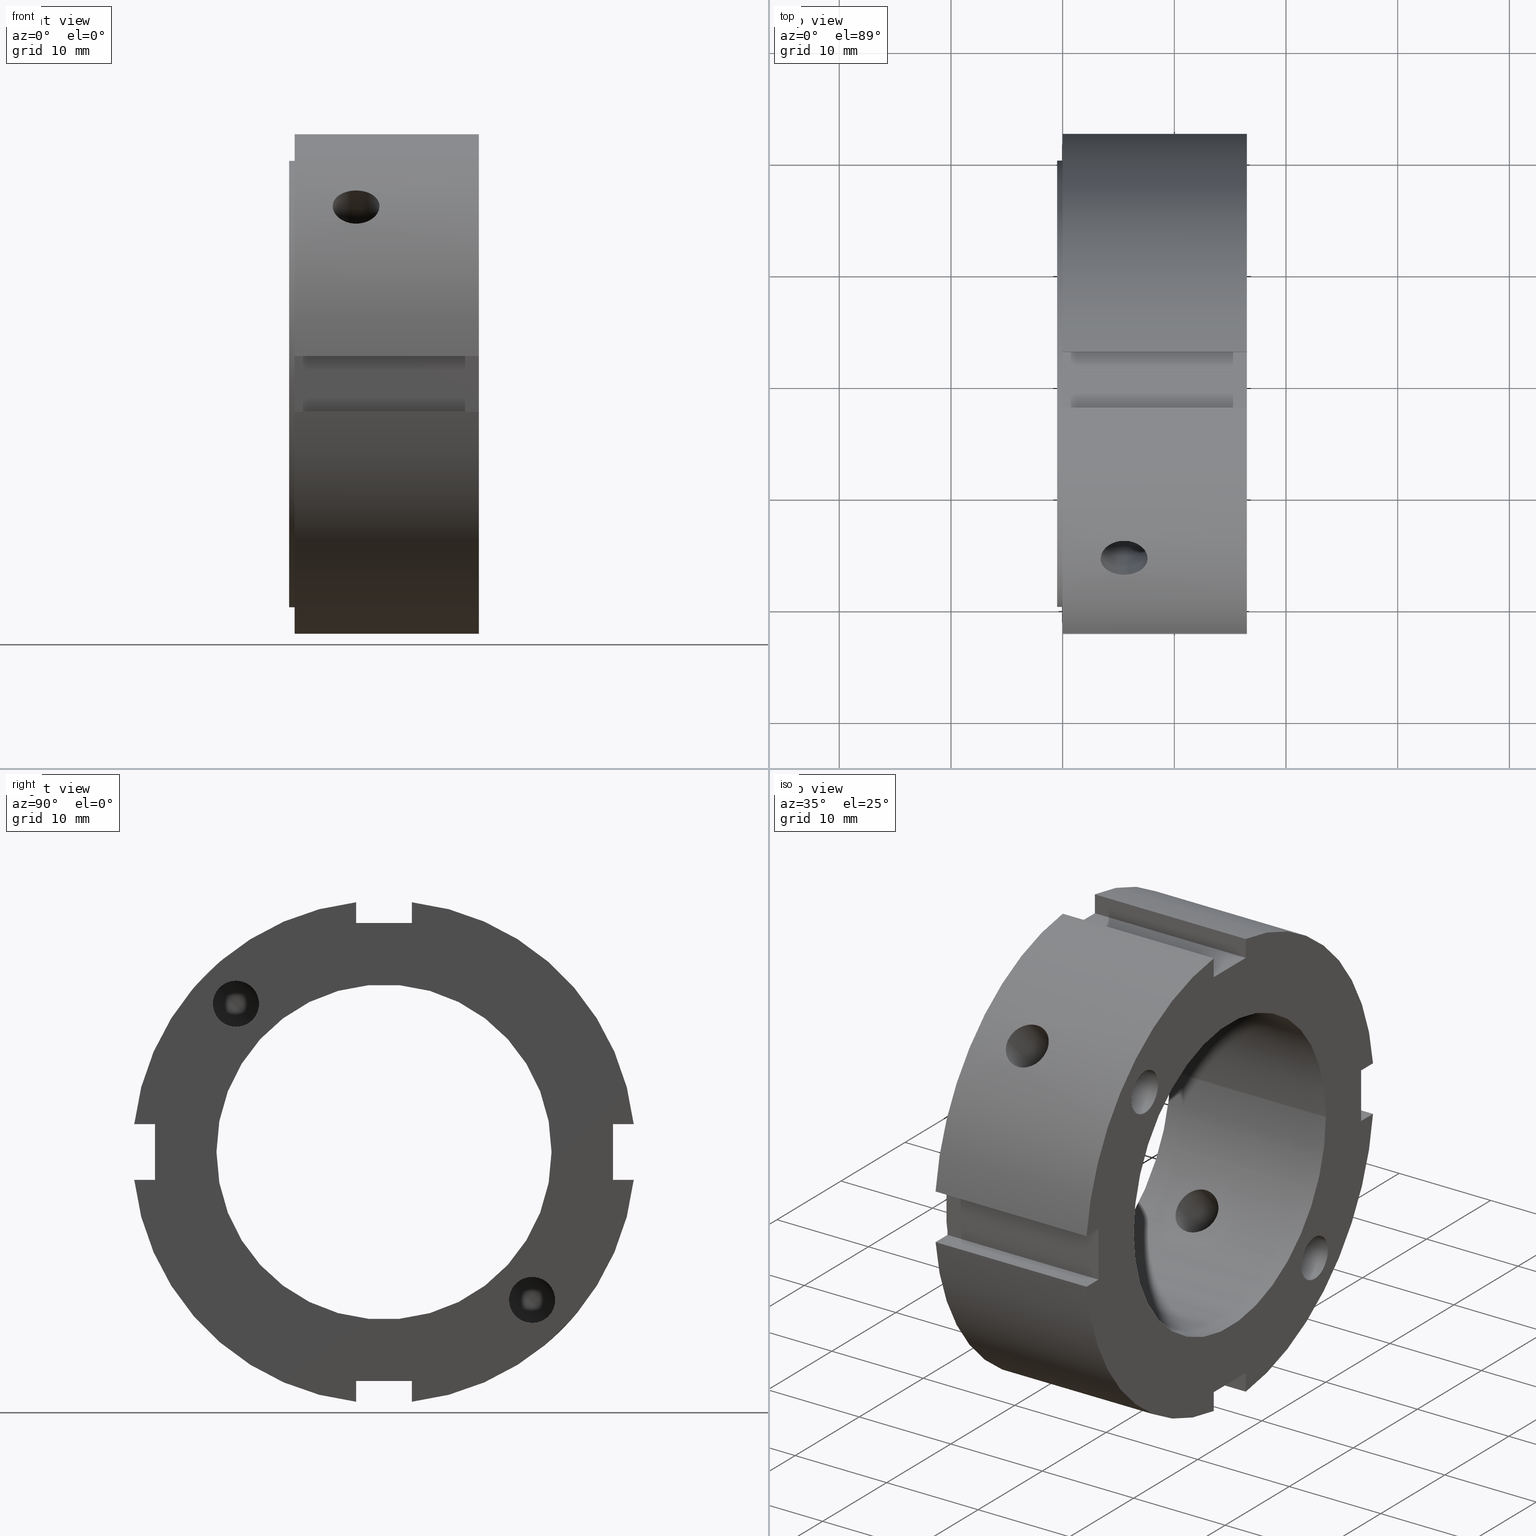
[diagram: canonical four-view strip — front | top / right | iso, engineering-drawing reading convention]
A machine part, canonical four-view strip (front | top / right | iso — engineering-drawing reading convention). The complete STEP part file that produces these views, byte-faithful:
ISO-10303-21;
HEADER;
/****************************************************************
 * Generated by software with PDE/Lib inside                    *
 * PDElib Version v51a, created Thu 01/14/2010                  *
 * ITI Transcendata (http://www.transcendata.com/)              *
 ****************************************************************/
FILE_DESCRIPTION((''),'2;1');
FILE_NAME('C:\\Users\\fkd-ct1n\\Desktop\\FKD ZMV 30.stp','2014-08-08T16:49:33',('fkd-ct1n'),(''),'Autodesk Inventor 2011','Autodesk Inventor 2011','');
FILE_SCHEMA(('AUTOMOTIVE_DESIGN { 1 0 10303 214 1 1 1 1 }'));
ENDSEC;
DATA;
#5=APPLICATION_CONTEXT('automotive design');
#6=APPLICATION_PROTOCOL_DEFINITION('International Standard','automotive_design',2001,#5);
#7=PRODUCT_CONTEXT('',#5,'mechanical');
#8=PRODUCT('FKD ZMV 30','FKD ZMV 30',$,(#7));
#9=PRODUCT_RELATED_PRODUCT_CATEGORY('part',$,(#8));
#10=PRODUCT_DEFINITION_FORMATION('',$,#8);
#11=PRODUCT_DEFINITION_CONTEXT('part definition',#5,'design');
#12=PRODUCT_DEFINITION('',$,#10,#11);
#18=(NAMED_UNIT(*)PLANE_ANGLE_UNIT()SI_UNIT($,.RADIAN.));
#19=DIMENSIONAL_EXPONENTS(0.0,0.0,0.0,0.0,0.0,0.0,0.0);
#20=PLANE_ANGLE_MEASURE_WITH_UNIT(PLANE_ANGLE_MEASURE(0.017453292500000),#18);
#24=(CONVERSION_BASED_UNIT('DEGREE',#20)NAMED_UNIT(#19)PLANE_ANGLE_UNIT());
#28=(NAMED_UNIT(*)SI_UNIT($,.STERADIAN.)SOLID_ANGLE_UNIT());
#32=(LENGTH_UNIT()NAMED_UNIT(*)SI_UNIT(.MILLI.,.METRE.));
#34=UNCERTAINTY_MEASURE_WITH_UNIT(LENGTH_MEASURE(0.010000000000000),#32,'DISTANCE_ACCURACY_VALUE','');
#36=(GEOMETRIC_REPRESENTATION_CONTEXT(3)GLOBAL_UNCERTAINTY_ASSIGNED_CONTEXT((#34))GLOBAL_UNIT_ASSIGNED_CONTEXT((#24,#28,#32))REPRESENTATION_CONTEXT('None','None'));
#37=AXIS2_PLACEMENT_3D('',#38,#39,#40);
#38=CARTESIAN_POINT('',(0.0,0.0,0.0));
#39=DIRECTION('',(0.0,0.0,1.0));
#40=DIRECTION('',(1.0,0.0,0.0));
#41=SHAPE_REPRESENTATION('',(#37),#36);
#42=PRODUCT_DEFINITION_SHAPE('','',#12);
#43=SHAPE_DEFINITION_REPRESENTATION(#42,#41);
#49=(NAMED_UNIT(*)PLANE_ANGLE_UNIT()SI_UNIT($,.RADIAN.));
#50=DIMENSIONAL_EXPONENTS(0.0,0.0,0.0,0.0,0.0,0.0,0.0);
#51=PLANE_ANGLE_MEASURE_WITH_UNIT(PLANE_ANGLE_MEASURE(0.017453292500000),#49);
#55=(CONVERSION_BASED_UNIT('DEGREE',#51)NAMED_UNIT(#50)PLANE_ANGLE_UNIT());
#59=(NAMED_UNIT(*)SI_UNIT($,.STERADIAN.)SOLID_ANGLE_UNIT());
#63=(LENGTH_UNIT()NAMED_UNIT(*)SI_UNIT(.MILLI.,.METRE.));
#65=UNCERTAINTY_MEASURE_WITH_UNIT(LENGTH_MEASURE(0.000001000000000),#63,'DISTANCE_ACCURACY_VALUE','');
#67=(GEOMETRIC_REPRESENTATION_CONTEXT(3)GLOBAL_UNCERTAINTY_ASSIGNED_CONTEXT((#65))GLOBAL_UNIT_ASSIGNED_CONTEXT((#55,#59,#63))REPRESENTATION_CONTEXT('','3D'));
#68=CARTESIAN_POINT('',(16.500000000000007,2.499999999999995,-29.999999999999996));
#69=DIRECTION('',(0.0,1.0,0.0));
#70=DIRECTION('',(1.0,0.0,0.0));
#71=AXIS2_PLACEMENT_3D('',#68,#69,#70);
#72=PLANE('',#71);
#73=CARTESIAN_POINT('',(16.500000000000007,2.499999999999996,-22.360679774997898));
#74=VERTEX_POINT('',#73);
#75=CARTESIAN_POINT('',(0.0,2.499999999999996,-22.360679774997898));
#76=VERTEX_POINT('',#75);
#77=CARTESIAN_POINT('',(16.500000000000007,2.499999999999996,-22.360679774997898));
#78=DIRECTION('',(-1.0,0.0,0.0));
#79=VECTOR('',#78,16.500000000000007);
#80=LINE('',#77,#79);
#81=EDGE_CURVE('',#74,#76,#80,.T.);
#82=ORIENTED_EDGE('',*,*,#81,.F.);
#83=CARTESIAN_POINT('',(16.500000000000007,2.499999999999996,-20.500000000000000));
#84=VERTEX_POINT('',#83);
#85=CARTESIAN_POINT('',(16.500000000000007,2.499999999999997,-20.500000000000000));
#86=DIRECTION('',(0.0,0.0,-1.0));
#87=VECTOR('',#86,1.860679774997898);
#88=LINE('',#85,#87);
#89=EDGE_CURVE('',#84,#74,#88,.T.);
#90=ORIENTED_EDGE('',*,*,#89,.F.);
#91=CARTESIAN_POINT('',(0.0,2.499999999999996,-20.500000000000000));
#92=VERTEX_POINT('',#91);
#93=CARTESIAN_POINT('',(16.500000000000007,2.499999999999996,-20.500000000000000));
#94=DIRECTION('',(-1.0,0.0,0.0));
#95=VECTOR('',#94,16.500000000000007);
#96=LINE('',#93,#95);
#97=EDGE_CURVE('',#84,#92,#96,.T.);
#98=ORIENTED_EDGE('',*,*,#97,.T.);
#99=CARTESIAN_POINT('',(0.0,2.499999999999996,-22.360679774997898));
#100=DIRECTION('',(0.0,0.0,1.0));
#101=VECTOR('',#100,1.860679774997898);
#102=LINE('',#99,#101);
#103=EDGE_CURVE('',#76,#92,#102,.T.);
#104=ORIENTED_EDGE('',*,*,#103,.F.);
#105=EDGE_LOOP('',(#82,#90,#98,#104));
#106=FACE_OUTER_BOUND('',#105,.T.);
#107=ADVANCED_FACE('',(#106),#72,.F.);
#108=CARTESIAN_POINT('',(16.500000000000007,-2.500000000000004,-20.500000000000000));
#109=DIRECTION('',(0.0,-1.0,0.0));
#110=DIRECTION('',(-1.0,0.0,0.0));
#111=AXIS2_PLACEMENT_3D('',#108,#109,#110);
#112=PLANE('',#111);
#113=CARTESIAN_POINT('',(0.0,-2.500000000000004,-22.360679774997898));
#114=VERTEX_POINT('',#113);
#115=CARTESIAN_POINT('',(16.500000000000007,-2.500000000000005,-22.360679774997898));
#116=VERTEX_POINT('',#115);
#117=CARTESIAN_POINT('',(0.0,-2.500000000000005,-22.360679774997898));
#118=DIRECTION('',(1.0,0.0,0.0));
#119=VECTOR('',#118,16.500000000000007);
#120=LINE('',#117,#119);
#121=EDGE_CURVE('',#114,#116,#120,.T.);
#122=ORIENTED_EDGE('',*,*,#121,.F.);
#123=CARTESIAN_POINT('',(0.0,-2.500000000000004,-20.500000000000000));
#124=VERTEX_POINT('',#123);
#125=CARTESIAN_POINT('',(0.0,-2.500000000000004,-20.500000000000000));
#126=DIRECTION('',(0.0,0.0,-1.0));
#127=VECTOR('',#126,1.860679774997898);
#128=LINE('',#125,#127);
#129=EDGE_CURVE('',#124,#114,#128,.T.);
#130=ORIENTED_EDGE('',*,*,#129,.F.);
#131=CARTESIAN_POINT('',(16.500000000000007,-2.500000000000004,-20.500000000000000));
#132=VERTEX_POINT('',#131);
#133=CARTESIAN_POINT('',(16.500000000000007,-2.500000000000004,-20.500000000000000));
#134=DIRECTION('',(-1.0,0.0,0.0));
#135=VECTOR('',#134,16.500000000000007);
#136=LINE('',#133,#135);
#137=EDGE_CURVE('',#132,#124,#136,.T.);
#138=ORIENTED_EDGE('',*,*,#137,.F.);
#139=CARTESIAN_POINT('',(16.500000000000007,-2.500000000000004,-22.360679774997898));
#140=DIRECTION('',(0.0,0.0,1.0));
#141=VECTOR('',#140,1.860679774997898);
#142=LINE('',#139,#141);
#143=EDGE_CURVE('',#116,#132,#142,.T.);
#144=ORIENTED_EDGE('',*,*,#143,.F.);
#145=EDGE_LOOP('',(#122,#130,#138,#144));
#146=FACE_OUTER_BOUND('',#145,.T.);
#147=ADVANCED_FACE('',(#146),#112,.F.);
#148=CARTESIAN_POINT('',(16.500000000000007,2.499999999999996,-20.500000000000000));
#149=DIRECTION('',(0.0,0.0,1.0));
#150=DIRECTION('',(0.0,-1.0,0.0));
#151=AXIS2_PLACEMENT_3D('',#148,#149,#150);
#152=PLANE('',#151);
#153=CARTESIAN_POINT('',(0.0,2.499999999999996,-20.500000000000000));
#154=DIRECTION('',(0.0,-1.0,0.0));
#155=VECTOR('',#154,5.0);
#156=LINE('',#153,#155);
#157=EDGE_CURVE('',#92,#124,#156,.T.);
#158=ORIENTED_EDGE('',*,*,#157,.F.);
#159=ORIENTED_EDGE('',*,*,#97,.F.);
#160=CARTESIAN_POINT('',(16.500000000000007,-2.500000000000004,-20.499999999999996));
#161=DIRECTION('',(0.0,1.0,0.0));
#162=VECTOR('',#161,5.0);
#163=LINE('',#160,#162);
#164=EDGE_CURVE('',#132,#84,#163,.T.);
#165=ORIENTED_EDGE('',*,*,#164,.F.);
#166=ORIENTED_EDGE('',*,*,#137,.T.);
#167=EDGE_LOOP('',(#158,#159,#165,#166));
#168=FACE_OUTER_BOUND('',#167,.T.);
#169=ADVANCED_FACE('',(#168),#152,.F.);
#170=CARTESIAN_POINT('',(16.500000000000007,-29.999999999999996,-2.499999999999996));
#171=DIRECTION('',(0.0,0.0,-1.0));
#172=DIRECTION('',(1.0,0.0,0.0));
#173=AXIS2_PLACEMENT_3D('',#170,#171,#172);
#174=PLANE('',#173);
#175=CARTESIAN_POINT('',(16.500000000000007,-22.360679774997898,-2.499999999999997));
#176=VERTEX_POINT('',#175);
#177=CARTESIAN_POINT('',(0.0,-22.360679774997898,-2.499999999999997));
#178=VERTEX_POINT('',#177);
#179=CARTESIAN_POINT('',(16.500000000000007,-22.360679774997898,-2.499999999999997));
#180=DIRECTION('',(-1.0,0.0,0.0));
#181=VECTOR('',#180,16.500000000000007);
#182=LINE('',#179,#181);
#183=EDGE_CURVE('',#176,#178,#182,.T.);
#184=ORIENTED_EDGE('',*,*,#183,.F.);
#185=CARTESIAN_POINT('',(16.500000000000007,-20.500000000000000,-2.499999999999997));
#186=VERTEX_POINT('',#185);
#187=CARTESIAN_POINT('',(16.500000000000007,-20.500000000000000,-2.499999999999997));
#188=DIRECTION('',(0.0,-1.0,0.0));
#189=VECTOR('',#188,1.860679774997898);
#190=LINE('',#187,#189);
#191=EDGE_CURVE('',#186,#176,#190,.T.);
#192=ORIENTED_EDGE('',*,*,#191,.F.);
#193=CARTESIAN_POINT('',(0.0,-20.500000000000000,-2.499999999999997));
#194=VERTEX_POINT('',#193);
#195=CARTESIAN_POINT('',(16.500000000000007,-20.500000000000000,-2.499999999999997));
#196=DIRECTION('',(-1.0,0.0,0.0));
#197=VECTOR('',#196,16.500000000000007);
#198=LINE('',#195,#197);
#199=EDGE_CURVE('',#186,#194,#198,.T.);
#200=ORIENTED_EDGE('',*,*,#199,.T.);
#201=CARTESIAN_POINT('',(0.0,-22.360679774997898,-2.499999999999997));
#202=DIRECTION('',(0.0,1.0,0.0));
#203=VECTOR('',#202,1.860679774997898);
#204=LINE('',#201,#203);
#205=EDGE_CURVE('',#178,#194,#204,.T.);
#206=ORIENTED_EDGE('',*,*,#205,.F.);
#207=EDGE_LOOP('',(#184,#192,#200,#206));
#208=FACE_OUTER_BOUND('',#207,.T.);
#209=ADVANCED_FACE('',(#208),#174,.F.);
#210=CARTESIAN_POINT('',(16.500000000000007,-20.500000000000000,2.500000000000003));
#211=DIRECTION('',(0.0,0.0,1.0));
#212=DIRECTION('',(-1.0,0.0,0.0));
#213=AXIS2_PLACEMENT_3D('',#210,#211,#212);
#214=PLANE('',#213);
#215=CARTESIAN_POINT('',(0.0,-22.360679774997898,2.500000000000003));
#216=VERTEX_POINT('',#215);
#217=CARTESIAN_POINT('',(16.500000000000007,-22.360679774997898,2.500000000000004));
#218=VERTEX_POINT('',#217);
#219=CARTESIAN_POINT('',(0.0,-22.360679774997898,2.500000000000004));
#220=DIRECTION('',(1.0,0.0,0.0));
#221=VECTOR('',#220,16.500000000000007);
#222=LINE('',#219,#221);
#223=EDGE_CURVE('',#216,#218,#222,.T.);
#224=ORIENTED_EDGE('',*,*,#223,.F.);
#225=CARTESIAN_POINT('',(0.0,-20.500000000000000,2.500000000000003));
#226=VERTEX_POINT('',#225);
#227=CARTESIAN_POINT('',(0.0,-20.500000000000000,2.500000000000002));
#228=DIRECTION('',(0.0,-1.0,0.0));
#229=VECTOR('',#228,1.860679774997898);
#230=LINE('',#227,#229);
#231=EDGE_CURVE('',#226,#216,#230,.T.);
#232=ORIENTED_EDGE('',*,*,#231,.F.);
#233=CARTESIAN_POINT('',(16.500000000000007,-20.500000000000000,2.500000000000003));
#234=VERTEX_POINT('',#233);
#235=CARTESIAN_POINT('',(16.500000000000007,-20.500000000000000,2.500000000000003));
#236=DIRECTION('',(-1.0,0.0,0.0));
#237=VECTOR('',#236,16.500000000000007);
#238=LINE('',#235,#237);
#239=EDGE_CURVE('',#234,#226,#238,.T.);
#240=ORIENTED_EDGE('',*,*,#239,.F.);
#241=CARTESIAN_POINT('',(16.500000000000007,-22.360679774997902,2.500000000000002));
#242=DIRECTION('',(0.0,1.0,0.0));
#243=VECTOR('',#242,1.860679774997905);
#244=LINE('',#241,#243);
#245=EDGE_CURVE('',#218,#234,#244,.T.);
#246=ORIENTED_EDGE('',*,*,#245,.F.);
#247=EDGE_LOOP('',(#224,#232,#240,#246));
#248=FACE_OUTER_BOUND('',#247,.T.);
#249=ADVANCED_FACE('',(#248),#214,.F.);
#250=CARTESIAN_POINT('',(16.500000000000007,-20.500000000000000,-2.499999999999997));
#251=DIRECTION('',(0.0,1.0,0.0));
#252=DIRECTION('',(0.0,0.0,1.0));
#253=AXIS2_PLACEMENT_3D('',#250,#251,#252);
#254=PLANE('',#253);
#255=CARTESIAN_POINT('',(0.0,-20.500000000000000,-2.499999999999997));
#256=DIRECTION('',(0.0,0.0,1.0));
#257=VECTOR('',#256,5.0);
#258=LINE('',#255,#257);
#259=EDGE_CURVE('',#194,#226,#258,.T.);
#260=ORIENTED_EDGE('',*,*,#259,.F.);
#261=ORIENTED_EDGE('',*,*,#199,.F.);
#262=CARTESIAN_POINT('',(16.500000000000007,-20.500000000000000,2.500000000000003));
#263=DIRECTION('',(0.0,0.0,-1.0));
#264=VECTOR('',#263,5.0);
#265=LINE('',#262,#264);
#266=EDGE_CURVE('',#234,#186,#265,.T.);
#267=ORIENTED_EDGE('',*,*,#266,.F.);
#268=ORIENTED_EDGE('',*,*,#239,.T.);
#269=EDGE_LOOP('',(#260,#261,#267,#268));
#270=FACE_OUTER_BOUND('',#269,.T.);
#271=ADVANCED_FACE('',(#270),#254,.F.);
#272=CARTESIAN_POINT('',(16.500000000000007,-2.499999999999998,29.999999999999996));
#273=DIRECTION('',(0.0,-1.0,0.0));
#274=DIRECTION('',(1.0,0.0,0.0));
#275=AXIS2_PLACEMENT_3D('',#272,#273,#274);
#276=PLANE('',#275);
#277=CARTESIAN_POINT('',(16.500000000000007,-2.499999999999999,22.360679774997898));
#278=VERTEX_POINT('',#277);
#279=CARTESIAN_POINT('',(0.0,-2.499999999999999,22.360679774997898));
#280=VERTEX_POINT('',#279);
#281=CARTESIAN_POINT('',(16.500000000000007,-2.499999999999998,22.360679774997898));
#282=DIRECTION('',(-1.0,0.0,0.0));
#283=VECTOR('',#282,16.500000000000007);
#284=LINE('',#281,#283);
#285=EDGE_CURVE('',#278,#280,#284,.T.);
#286=ORIENTED_EDGE('',*,*,#285,.F.);
#287=CARTESIAN_POINT('',(16.500000000000007,-2.499999999999999,20.500000000000000));
#288=VERTEX_POINT('',#287);
#289=CARTESIAN_POINT('',(16.500000000000007,-2.499999999999999,20.500000000000000));
#290=DIRECTION('',(0.0,0.0,1.0));
#291=VECTOR('',#290,1.860679774997898);
#292=LINE('',#289,#291);
#293=EDGE_CURVE('',#288,#278,#292,.T.);
#294=ORIENTED_EDGE('',*,*,#293,.F.);
#295=CARTESIAN_POINT('',(0.0,-2.499999999999999,20.500000000000000));
#296=VERTEX_POINT('',#295);
#297=CARTESIAN_POINT('',(16.500000000000007,-2.499999999999999,20.500000000000000));
#298=DIRECTION('',(-1.0,0.0,0.0));
#299=VECTOR('',#298,16.500000000000007);
#300=LINE('',#297,#299);
#301=EDGE_CURVE('',#288,#296,#300,.T.);
#302=ORIENTED_EDGE('',*,*,#301,.T.);
#303=CARTESIAN_POINT('',(0.0,-2.499999999999999,22.360679774997898));
#304=DIRECTION('',(0.0,0.0,-1.0));
#305=VECTOR('',#304,1.860679774997898);
#306=LINE('',#303,#305);
#307=EDGE_CURVE('',#280,#296,#306,.T.);
#308=ORIENTED_EDGE('',*,*,#307,.F.);
#309=EDGE_LOOP('',(#286,#294,#302,#308));
#310=FACE_OUTER_BOUND('',#309,.T.);
#311=ADVANCED_FACE('',(#310),#276,.F.);
#312=CARTESIAN_POINT('',(16.500000000000007,2.500000000000002,20.500000000000000));
#313=DIRECTION('',(0.0,1.0,0.0));
#314=DIRECTION('',(-1.0,0.0,0.0));
#315=AXIS2_PLACEMENT_3D('',#312,#313,#314);
#316=PLANE('',#315);
#317=CARTESIAN_POINT('',(0.0,2.500000000000002,22.360679774997898));
#318=VERTEX_POINT('',#317);
#319=CARTESIAN_POINT('',(16.500000000000007,2.500000000000002,22.360679774997898));
#320=VERTEX_POINT('',#319);
#321=CARTESIAN_POINT('',(0.0,2.500000000000002,22.360679774997898));
#322=DIRECTION('',(1.0,0.0,0.0));
#323=VECTOR('',#322,16.500000000000007);
#324=LINE('',#321,#323);
#325=EDGE_CURVE('',#318,#320,#324,.T.);
#326=ORIENTED_EDGE('',*,*,#325,.F.);
#327=CARTESIAN_POINT('',(0.0,2.500000000000002,20.500000000000000));
#328=VERTEX_POINT('',#327);
#329=CARTESIAN_POINT('',(0.0,2.500000000000001,20.500000000000000));
#330=DIRECTION('',(0.0,0.0,1.0));
#331=VECTOR('',#330,1.860679774997898);
#332=LINE('',#329,#331);
#333=EDGE_CURVE('',#328,#318,#332,.T.);
#334=ORIENTED_EDGE('',*,*,#333,.F.);
#335=CARTESIAN_POINT('',(16.500000000000007,2.500000000000002,20.500000000000000));
#336=VERTEX_POINT('',#335);
#337=CARTESIAN_POINT('',(16.500000000000007,2.500000000000002,20.500000000000000));
#338=DIRECTION('',(-1.0,0.0,0.0));
#339=VECTOR('',#338,16.500000000000007);
#340=LINE('',#337,#339);
#341=EDGE_CURVE('',#336,#328,#340,.T.);
#342=ORIENTED_EDGE('',*,*,#341,.F.);
#343=CARTESIAN_POINT('',(16.500000000000007,2.500000000000001,22.360679774997898));
#344=DIRECTION('',(0.0,0.0,-1.0));
#345=VECTOR('',#344,1.860679774997898);
#346=LINE('',#343,#345);
#347=EDGE_CURVE('',#320,#336,#346,.T.);
#348=ORIENTED_EDGE('',*,*,#347,.F.);
#349=EDGE_LOOP('',(#326,#334,#342,#348));
#350=FACE_OUTER_BOUND('',#349,.T.);
#351=ADVANCED_FACE('',(#350),#316,.F.);
#352=CARTESIAN_POINT('',(16.500000000000007,-2.499999999999999,20.500000000000000));
#353=DIRECTION('',(0.0,0.0,-1.0));
#354=DIRECTION('',(0.0,1.0,0.0));
#355=AXIS2_PLACEMENT_3D('',#352,#353,#354);
#356=PLANE('',#355);
#357=CARTESIAN_POINT('',(0.0,-2.499999999999998,20.500000000000000));
#358=DIRECTION('',(0.0,1.0,0.0));
#359=VECTOR('',#358,5.0);
#360=LINE('',#357,#359);
#361=EDGE_CURVE('',#296,#328,#360,.T.);
#362=ORIENTED_EDGE('',*,*,#361,.F.);
#363=ORIENTED_EDGE('',*,*,#301,.F.);
#364=CARTESIAN_POINT('',(16.500000000000007,2.500000000000002,20.500000000000000));
#365=DIRECTION('',(0.0,-1.0,0.0));
#366=VECTOR('',#365,5.0);
#367=LINE('',#364,#366);
#368=EDGE_CURVE('',#336,#288,#367,.T.);
#369=ORIENTED_EDGE('',*,*,#368,.F.);
#370=ORIENTED_EDGE('',*,*,#341,.T.);
#371=EDGE_LOOP('',(#362,#363,#369,#370));
#372=FACE_OUTER_BOUND('',#371,.T.);
#373=ADVANCED_FACE('',(#372),#356,.F.);
#374=CARTESIAN_POINT('',(8.250000000000002,0.0,0.0));
#375=DIRECTION('',(1.0,0.0,0.0));
#376=DIRECTION('',(0.0,1.0,0.0));
#377=AXIS2_PLACEMENT_3D('',#374,#375,#376);
#378=CYLINDRICAL_SURFACE('',#377,22.500000000000000);
#379=ORIENTED_EDGE('',*,*,#325,.T.);
#380=CARTESIAN_POINT('',(16.500000000000007,22.360679774997898,2.500000000000000));
#381=VERTEX_POINT('',#380);
#382=CARTESIAN_POINT('',(16.500000000000004,0.0,0.0));
#383=DIRECTION('',(1.0,0.0,0.0));
#384=DIRECTION('',(0.0,1.0,0.0));
#385=AXIS2_PLACEMENT_3D('',#382,#383,#384);
#386=CIRCLE('',#385,22.500000000000004);
#387=EDGE_CURVE('',#381,#320,#386,.T.);
#388=ORIENTED_EDGE('',*,*,#387,.F.);
#389=CARTESIAN_POINT('',(0.0,22.360679774997898,2.500000000000000));
#390=VERTEX_POINT('',#389);
#391=CARTESIAN_POINT('',(16.500000000000007,22.360679774997898,2.500000000000000));
#392=DIRECTION('',(-1.0,0.0,0.0));
#393=VECTOR('',#392,16.500000000000007);
#394=LINE('',#391,#393);
#395=EDGE_CURVE('',#381,#390,#394,.T.);
#396=ORIENTED_EDGE('',*,*,#395,.T.);
#397=CARTESIAN_POINT('',(0.0,0.0,0.0));
#398=DIRECTION('',(1.0,0.0,0.0));
#399=DIRECTION('',(0.0,1.0,0.0));
#400=AXIS2_PLACEMENT_3D('',#397,#398,#399);
#401=CIRCLE('',#400,22.500000000000000);
#402=EDGE_CURVE('',#390,#318,#401,.T.);
#403=ORIENTED_EDGE('',*,*,#402,.T.);
#404=EDGE_LOOP('',(#379,#388,#396,#403));
#405=FACE_OUTER_BOUND('',#404,.T.);
#406=ADVANCED_FACE('',(#405),#378,.T.);
#407=CARTESIAN_POINT('',(8.250000000000002,0.0,0.0));
#408=DIRECTION('',(1.0,0.0,0.0));
#409=DIRECTION('',(0.0,1.0,0.0));
#410=AXIS2_PLACEMENT_3D('',#407,#408,#409);
#411=CYLINDRICAL_SURFACE('',#410,22.500000000000000);
#412=ORIENTED_EDGE('',*,*,#223,.T.);
#413=CARTESIAN_POINT('',(16.500000000000004,0.0,0.0));
#414=DIRECTION('',(1.0,0.0,0.0));
#415=DIRECTION('',(0.0,1.0,0.0));
#416=AXIS2_PLACEMENT_3D('',#413,#414,#415);
#417=CIRCLE('',#416,22.500000000000004);
#418=EDGE_CURVE('',#278,#218,#417,.T.);
#419=ORIENTED_EDGE('',*,*,#418,.F.);
#420=ORIENTED_EDGE('',*,*,#285,.T.);
#421=CARTESIAN_POINT('',(0.0,0.0,0.0));
#422=DIRECTION('',(1.0,0.0,0.0));
#423=DIRECTION('',(0.0,1.0,0.0));
#424=AXIS2_PLACEMENT_3D('',#421,#422,#423);
#425=CIRCLE('',#424,22.500000000000000);
#426=EDGE_CURVE('',#280,#216,#425,.T.);
#427=ORIENTED_EDGE('',*,*,#426,.T.);
#428=EDGE_LOOP('',(#412,#419,#420,#427));
#429=FACE_OUTER_BOUND('',#428,.T.);
#430=CARTESIAN_POINT('',(7.600000000000002,-15.909902576697316,15.909902576697323));
#431=VERTEX_POINT('',#430);
#432=CARTESIAN_POINT('',(3.400000000000003,-15.909902576697316,15.909902576697323));
#433=VERTEX_POINT('',#432);
#434=CARTESIAN_POINT('',(7.600000000000002,-15.909902576697315,15.909902576697323));
#435=CARTESIAN_POINT('',(7.600000000000002,-16.096469292374355,15.723335861020281));
#436=CARTESIAN_POINT('',(7.547239057296467,-16.291779852313045,15.520789539391275));
#437=CARTESIAN_POINT('',(7.332878443238671,-16.644524718061657,15.141888772320415));
#438=CARTESIAN_POINT('',(7.171287251154159,-16.802153927952020,14.965711025155484));
#439=CARTESIAN_POINT('',(6.798560749055520,-17.048279457433907,14.684721680313594));
#440=CARTESIAN_POINT('',(6.562523797474902,-17.153249462024601,14.561167759025855));
#441=CARTESIAN_POINT('',(6.045172914387149,-17.291706665941927,14.396473673633349));
#442=CARTESIAN_POINT('',(5.763845860257931,-17.325378779424646,14.355530298441156));
#443=CARTESIAN_POINT('',(5.236154139742075,-17.325378779424646,14.355530298441156));
#444=CARTESIAN_POINT('',(4.954827085612854,-17.291706665941927,14.396473673633349));
#445=CARTESIAN_POINT('',(4.437476202525103,-17.153249462024601,14.561167759025855));
#446=CARTESIAN_POINT('',(4.201439250944484,-17.048279457433907,14.684721680313594));
#447=CARTESIAN_POINT('',(3.828712748845846,-16.802153927952020,14.965711025155484));
#448=CARTESIAN_POINT('',(3.667121556761336,-16.644524718061657,15.141888772320415));
#449=CARTESIAN_POINT('',(3.452760942703541,-16.291779852313045,15.520789539391275));
#450=CARTESIAN_POINT('',(3.400000000000003,-16.096469292374355,15.723335861020280));
#451=CARTESIAN_POINT('',(3.400000000000003,-15.909902576697315,15.909902576697322));
#452=B_SPLINE_CURVE_WITH_KNOTS('',3,(#434,#435,#436,#437,#438,#439,#440,#441,#442,#443,#444,#445,#446,#447,#448,#449,#450,#451),.UNSPECIFIED.,.F.,.U.,(4,2,2,2,2,2,2,2,4),(0.316614623913483,0.395768177792846,0.474921731672209,0.554075489749587,0.633229247826965,0.712383005904344,0.791536763981722,0.870690317861085,0.949843871740448),.UNSPECIFIED.);
#453=EDGE_CURVE('',#431,#433,#452,.T.);
#454=ORIENTED_EDGE('',*,*,#453,.T.);
#455=CARTESIAN_POINT('',(3.400000000000002,-15.909902576697315,15.909902576697322));
#456=CARTESIAN_POINT('',(3.400000000000002,-15.723335861020274,16.096469292374362));
#457=CARTESIAN_POINT('',(3.452760942703541,-15.520789539391265,16.291779852313056));
#458=CARTESIAN_POINT('',(3.667121556761334,-15.141888772320407,16.644524718061664));
#459=CARTESIAN_POINT('',(3.828712748845846,-14.965711025155478,16.802153927952027));
#460=CARTESIAN_POINT('',(4.201439250944484,-14.684721680313583,17.048279457433914));
#461=CARTESIAN_POINT('',(4.437476202525103,-14.561167759025848,17.153249462024611));
#462=CARTESIAN_POINT('',(4.954827085612855,-14.396473673633341,17.291706665941938));
#463=CARTESIAN_POINT('',(5.236154139742075,-14.355530298441145,17.325378779424653));
#464=CARTESIAN_POINT('',(5.500000000000003,-14.355530298441145,17.325378779424653));
#465=CARTESIAN_POINT('',(5.763845860257931,-14.355530298441145,17.325378779424653));
#466=CARTESIAN_POINT('',(6.045172914387153,-14.396473673633341,17.291706665941938));
#467=CARTESIAN_POINT('',(6.562523797474904,-14.561167759025848,17.153249462024611));
#468=CARTESIAN_POINT('',(6.798560749055520,-14.684721680313583,17.048279457433914));
#469=CARTESIAN_POINT('',(7.171287251154158,-14.965711025155475,16.802153927952027));
#470=CARTESIAN_POINT('',(7.332878443238670,-15.141888772320405,16.644524718061668));
#471=CARTESIAN_POINT('',(7.547239057296464,-15.520789539391265,16.291779852313056));
#472=CARTESIAN_POINT('',(7.600000000000003,-15.723335861020274,16.096469292374366));
#473=CARTESIAN_POINT('',(7.600000000000003,-15.909902576697315,15.909902576697323));
#474=B_SPLINE_CURVE_WITH_KNOTS('',3,(#455,#456,#457,#458,#459,#460,#461,#462,#463,#464,#465,#466,#467,#468,#469,#470,#471,#472,#473),.UNSPECIFIED.,.F.,.U.,(4,2,2,2,3,2,2,2,4),(0.949843871740448,1.028997425619811,1.108150979499174,1.187304737576553,1.266458495653931,1.345612253731310,1.424766011808688,1.503919565688051,1.583073119567414),.UNSPECIFIED.);
#475=EDGE_CURVE('',#433,#431,#474,.T.);
#476=ORIENTED_EDGE('',*,*,#475,.T.);
#477=EDGE_LOOP('',(#454,#476));
#478=FACE_BOUND('',#477,.T.);
#479=ADVANCED_FACE('',(#429,#478),#411,.T.);
#480=CARTESIAN_POINT('',(8.250000000000002,0.0,0.0));
#481=DIRECTION('',(1.0,0.0,0.0));
#482=DIRECTION('',(0.0,1.0,0.0));
#483=AXIS2_PLACEMENT_3D('',#480,#481,#482);
#484=CYLINDRICAL_SURFACE('',#483,22.500000000000000);
#485=ORIENTED_EDGE('',*,*,#121,.T.);
#486=CARTESIAN_POINT('',(16.500000000000004,0.0,0.0));
#487=DIRECTION('',(1.0,0.0,0.0));
#488=DIRECTION('',(0.0,1.0,0.0));
#489=AXIS2_PLACEMENT_3D('',#486,#487,#488);
#490=CIRCLE('',#489,22.500000000000004);
#491=EDGE_CURVE('',#176,#116,#490,.T.);
#492=ORIENTED_EDGE('',*,*,#491,.F.);
#493=ORIENTED_EDGE('',*,*,#183,.T.);
#494=CARTESIAN_POINT('',(0.0,0.0,0.0));
#495=DIRECTION('',(1.0,0.0,0.0));
#496=DIRECTION('',(0.0,1.0,0.0));
#497=AXIS2_PLACEMENT_3D('',#494,#495,#496);
#498=CIRCLE('',#497,22.500000000000000);
#499=EDGE_CURVE('',#178,#114,#498,.T.);
#500=ORIENTED_EDGE('',*,*,#499,.T.);
#501=EDGE_LOOP('',(#485,#492,#493,#500));
#502=FACE_OUTER_BOUND('',#501,.T.);
#503=ADVANCED_FACE('',(#502),#484,.T.);
#504=CARTESIAN_POINT('',(8.250000000000002,0.0,0.0));
#505=DIRECTION('',(1.0,0.0,0.0));
#506=DIRECTION('',(0.0,1.0,0.0));
#507=AXIS2_PLACEMENT_3D('',#504,#505,#506);
#508=CYLINDRICAL_SURFACE('',#507,22.500000000000000);
#509=ORIENTED_EDGE('',*,*,#81,.T.);
#510=CARTESIAN_POINT('',(0.0,22.360679774997898,-2.500000000000000));
#511=VERTEX_POINT('',#510);
#512=CARTESIAN_POINT('',(0.0,0.0,0.0));
#513=DIRECTION('',(1.0,0.0,0.0));
#514=DIRECTION('',(0.0,1.0,0.0));
#515=AXIS2_PLACEMENT_3D('',#512,#513,#514);
#516=CIRCLE('',#515,22.500000000000000);
#517=EDGE_CURVE('',#76,#511,#516,.T.);
#518=ORIENTED_EDGE('',*,*,#517,.T.);
#519=CARTESIAN_POINT('',(16.500000000000007,22.360679774997898,-2.500000000000001));
#520=VERTEX_POINT('',#519);
#521=CARTESIAN_POINT('',(0.0,22.360679774997898,-2.500000000000000));
#522=DIRECTION('',(1.0,0.0,0.0));
#523=VECTOR('',#522,16.500000000000007);
#524=LINE('',#521,#523);
#525=EDGE_CURVE('',#511,#520,#524,.T.);
#526=ORIENTED_EDGE('',*,*,#525,.T.);
#527=CARTESIAN_POINT('',(16.500000000000004,0.0,0.0));
#528=DIRECTION('',(1.0,0.0,0.0));
#529=DIRECTION('',(0.0,1.0,0.0));
#530=AXIS2_PLACEMENT_3D('',#527,#528,#529);
#531=CIRCLE('',#530,22.500000000000004);
#532=EDGE_CURVE('',#74,#520,#531,.T.);
#533=ORIENTED_EDGE('',*,*,#532,.F.);
#534=EDGE_LOOP('',(#509,#518,#526,#533));
#535=FACE_OUTER_BOUND('',#534,.T.);
#536=CARTESIAN_POINT('',(7.600000000000002,15.909902576697320,-15.909902576697322));
#537=VERTEX_POINT('',#536);
#538=CARTESIAN_POINT('',(3.400000000000003,15.909902576697320,-15.909902576697322));
#539=VERTEX_POINT('',#538);
#540=CARTESIAN_POINT('',(7.600000000000003,15.909902576697320,-15.909902576697322));
#541=CARTESIAN_POINT('',(7.600000000000003,16.096469292374358,-15.723335861020280));
#542=CARTESIAN_POINT('',(7.547239057296466,16.291779852313052,-15.520789539391270));
#543=CARTESIAN_POINT('',(7.332878443238672,16.644524718061657,-15.141888772320410));
#544=CARTESIAN_POINT('',(7.171287251154158,16.802153927952020,-14.965711025155484));
#545=CARTESIAN_POINT('',(6.798560749055520,17.048279457433907,-14.684721680313594));
#546=CARTESIAN_POINT('',(6.562523797474904,17.153249462024604,-14.561167759025849));
#547=CARTESIAN_POINT('',(6.045172914387153,17.291706665941931,-14.396473673633343));
#548=CARTESIAN_POINT('',(5.763845860257931,17.325378779424650,-14.355530298441153));
#549=CARTESIAN_POINT('',(5.236154139742075,17.325378779424650,-14.355530298441153));
#550=CARTESIAN_POINT('',(4.954827085612854,17.291706665941931,-14.396473673633343));
#551=CARTESIAN_POINT('',(4.437476202525101,17.153249462024604,-14.561167759025849));
#552=CARTESIAN_POINT('',(4.201439250944484,17.048279457433907,-14.684721680313594));
#553=CARTESIAN_POINT('',(3.828712748845847,16.802153927952020,-14.965711025155484));
#554=CARTESIAN_POINT('',(3.667121556761334,16.644524718061657,-15.141888772320410));
#555=CARTESIAN_POINT('',(3.452760942703541,16.291779852313052,-15.520789539391270));
#556=CARTESIAN_POINT('',(3.400000000000003,16.096469292374358,-15.723335861020278));
#557=CARTESIAN_POINT('',(3.400000000000003,15.909902576697320,-15.909902576697320));
#558=B_SPLINE_CURVE_WITH_KNOTS('',3,(#540,#541,#542,#543,#544,#545,#546,#547,#548,#549,#550,#551,#552,#553,#554,#555,#556,#557),.UNSPECIFIED.,.F.,.U.,(4,2,2,2,2,2,2,2,4),(0.316614623913483,0.395768177792846,0.474921731672209,0.554075489749587,0.633229247826965,0.712383005904344,0.791536763981722,0.870690317861085,0.949843871740448),.UNSPECIFIED.);
#559=EDGE_CURVE('',#537,#539,#558,.T.);
#560=ORIENTED_EDGE('',*,*,#559,.T.);
#561=CARTESIAN_POINT('',(3.400000000000003,15.909902576697316,-15.909902576697320));
#562=CARTESIAN_POINT('',(3.400000000000003,15.723335861020276,-16.096469292374358));
#563=CARTESIAN_POINT('',(3.452760942703541,15.520789539391274,-16.291779852313052));
#564=CARTESIAN_POINT('',(3.667121556761335,15.141888772320414,-16.644524718061660));
#565=CARTESIAN_POINT('',(3.828712748845846,14.965711025155478,-16.802153927952023));
#566=CARTESIAN_POINT('',(4.201439250944484,14.684721680313588,-17.048279457433910));
#567=CARTESIAN_POINT('',(4.437476202525101,14.561167759025853,-17.153249462024604));
#568=CARTESIAN_POINT('',(4.954827085612853,14.396473673633345,-17.291706665941934));
#569=CARTESIAN_POINT('',(5.236154139742074,14.355530298441151,-17.325378779424653));
#570=CARTESIAN_POINT('',(5.500000000000003,14.355530298441151,-17.325378779424653));
#571=CARTESIAN_POINT('',(5.763845860257931,14.355530298441151,-17.325378779424653));
#572=CARTESIAN_POINT('',(6.045172914387153,14.396473673633343,-17.291706665941934));
#573=CARTESIAN_POINT('',(6.562523797474905,14.561167759025849,-17.153249462024604));
#574=CARTESIAN_POINT('',(6.798560749055522,14.684721680313588,-17.048279457433910));
#575=CARTESIAN_POINT('',(7.171287251154159,14.965711025155478,-16.802153927952023));
#576=CARTESIAN_POINT('',(7.332878443238671,15.141888772320414,-16.644524718061660));
#577=CARTESIAN_POINT('',(7.547239057296464,15.520789539391274,-16.291779852313052));
#578=CARTESIAN_POINT('',(7.600000000000003,15.723335861020276,-16.096469292374358));
#579=CARTESIAN_POINT('',(7.600000000000003,15.909902576697316,-15.909902576697320));
#580=B_SPLINE_CURVE_WITH_KNOTS('',3,(#561,#562,#563,#564,#565,#566,#567,#568,#569,#570,#571,#572,#573,#574,#575,#576,#577,#578,#579),.UNSPECIFIED.,.F.,.U.,(4,2,2,2,3,2,2,2,4),(0.949843871740448,1.028997425619811,1.108150979499174,1.187304737576552,1.266458495653931,1.345612253731309,1.424766011808688,1.503919565688051,1.583073119567414),.UNSPECIFIED.);
#581=EDGE_CURVE('',#539,#537,#580,.T.);
#582=ORIENTED_EDGE('',*,*,#581,.T.);
#583=EDGE_LOOP('',(#560,#582));
#584=FACE_BOUND('',#583,.T.);
#585=ADVANCED_FACE('',(#535,#584),#508,.T.);
#586=CARTESIAN_POINT('',(0.0,21.250000000000000,0.0));
#587=DIRECTION('',(-1.0,0.0,0.0));
#588=DIRECTION('',(0.0,0.0,1.0));
#589=AXIS2_PLACEMENT_3D('',#586,#587,#588);
#590=PLANE('',#589);
#591=ORIENTED_EDGE('',*,*,#103,.T.);
#592=ORIENTED_EDGE('',*,*,#157,.T.);
#593=ORIENTED_EDGE('',*,*,#129,.T.);
#594=ORIENTED_EDGE('',*,*,#499,.F.);
#595=ORIENTED_EDGE('',*,*,#205,.T.);
#596=ORIENTED_EDGE('',*,*,#259,.T.);
#597=ORIENTED_EDGE('',*,*,#231,.T.);
#598=ORIENTED_EDGE('',*,*,#426,.F.);
#599=ORIENTED_EDGE('',*,*,#307,.T.);
#600=ORIENTED_EDGE('',*,*,#361,.T.);
#601=ORIENTED_EDGE('',*,*,#333,.T.);
#602=ORIENTED_EDGE('',*,*,#402,.F.);
#603=CARTESIAN_POINT('',(0.0,20.500000000000000,2.500000000000000));
#604=VERTEX_POINT('',#603);
#605=CARTESIAN_POINT('',(0.0,22.360679774997898,2.500000000000000));
#606=DIRECTION('',(0.0,-1.0,0.0));
#607=VECTOR('',#606,1.860679774997898);
#608=LINE('',#605,#607);
#609=EDGE_CURVE('',#390,#604,#608,.T.);
#610=ORIENTED_EDGE('',*,*,#609,.T.);
#611=CARTESIAN_POINT('',(0.0,20.500000000000000,-2.500000000000000));
#612=VERTEX_POINT('',#611);
#613=CARTESIAN_POINT('',(0.0,20.500000000000000,2.500000000000000));
#614=DIRECTION('',(0.0,0.0,-1.0));
#615=VECTOR('',#614,5.0);
#616=LINE('',#613,#615);
#617=EDGE_CURVE('',#604,#612,#616,.T.);
#618=ORIENTED_EDGE('',*,*,#617,.T.);
#619=CARTESIAN_POINT('',(0.0,20.500000000000000,-2.500000000000000));
#620=DIRECTION('',(0.0,1.0,0.0));
#621=VECTOR('',#620,1.860679774997898);
#622=LINE('',#619,#621);
#623=EDGE_CURVE('',#612,#511,#622,.T.);
#624=ORIENTED_EDGE('',*,*,#623,.T.);
#625=ORIENTED_EDGE('',*,*,#517,.F.);
#626=EDGE_LOOP('',(#591,#592,#593,#594,#595,#596,#597,#598,#599,#600,#601,#602,#610,#618,#624,#625));
#627=FACE_OUTER_BOUND('',#626,.T.);
#628=CARTESIAN_POINT('',(0.0,20.0,0.0));
#629=VERTEX_POINT('',#628);
#630=CARTESIAN_POINT('',(0.0,0.0,0.0));
#631=DIRECTION('',(1.0,0.0,0.0));
#632=DIRECTION('',(0.0,1.0,0.0));
#633=AXIS2_PLACEMENT_3D('',#630,#631,#632);
#634=CIRCLE('',#633,20.0);
#635=EDGE_CURVE('',#629,#629,#634,.T.);
#636=ORIENTED_EDGE('',*,*,#635,.T.);
#637=EDGE_LOOP('',(#636));
#638=FACE_BOUND('',#637,.T.);
#639=ADVANCED_FACE('',(#627,#638),#590,.T.);
#640=CARTESIAN_POINT('',(16.500000000000007,29.999999999999996,2.500000000000000));
#641=DIRECTION('',(0.0,0.0,1.0));
#642=DIRECTION('',(1.0,0.0,0.0));
#643=AXIS2_PLACEMENT_3D('',#640,#641,#642);
#644=PLANE('',#643);
#645=ORIENTED_EDGE('',*,*,#395,.F.);
#646=CARTESIAN_POINT('',(16.500000000000007,20.500000000000000,2.500000000000000));
#647=VERTEX_POINT('',#646);
#648=CARTESIAN_POINT('',(16.500000000000007,20.500000000000000,2.500000000000000));
#649=DIRECTION('',(0.0,1.0,0.0));
#650=VECTOR('',#649,1.860679774997898);
#651=LINE('',#648,#650);
#652=EDGE_CURVE('',#647,#381,#651,.T.);
#653=ORIENTED_EDGE('',*,*,#652,.F.);
#654=CARTESIAN_POINT('',(16.500000000000007,20.500000000000000,2.500000000000000));
#655=DIRECTION('',(-1.0,0.0,0.0));
#656=VECTOR('',#655,16.500000000000007);
#657=LINE('',#654,#656);
#658=EDGE_CURVE('',#647,#604,#657,.T.);
#659=ORIENTED_EDGE('',*,*,#658,.T.);
#660=ORIENTED_EDGE('',*,*,#609,.F.);
#661=EDGE_LOOP('',(#645,#653,#659,#660));
#662=FACE_OUTER_BOUND('',#661,.T.);
#663=ADVANCED_FACE('',(#662),#644,.F.);
#664=CARTESIAN_POINT('',(16.500000000000007,20.500000000000000,-2.500000000000000));
#665=DIRECTION('',(0.0,0.0,-1.0));
#666=DIRECTION('',(-1.0,0.0,0.0));
#667=AXIS2_PLACEMENT_3D('',#664,#665,#666);
#668=PLANE('',#667);
#669=ORIENTED_EDGE('',*,*,#525,.F.);
#670=ORIENTED_EDGE('',*,*,#623,.F.);
#671=CARTESIAN_POINT('',(16.500000000000007,20.500000000000000,-2.500000000000000));
#672=VERTEX_POINT('',#671);
#673=CARTESIAN_POINT('',(16.500000000000007,20.500000000000000,-2.500000000000000));
#674=DIRECTION('',(-1.0,0.0,0.0));
#675=VECTOR('',#674,16.500000000000007);
#676=LINE('',#673,#675);
#677=EDGE_CURVE('',#672,#612,#676,.T.);
#678=ORIENTED_EDGE('',*,*,#677,.F.);
#679=CARTESIAN_POINT('',(16.500000000000007,22.360679774997898,-2.500000000000000));
#680=DIRECTION('',(0.0,-1.0,0.0));
#681=VECTOR('',#680,1.860679774997902);
#682=LINE('',#679,#681);
#683=EDGE_CURVE('',#520,#672,#682,.T.);
#684=ORIENTED_EDGE('',*,*,#683,.F.);
#685=EDGE_LOOP('',(#669,#670,#678,#684));
#686=FACE_OUTER_BOUND('',#685,.T.);
#687=ADVANCED_FACE('',(#686),#668,.F.);
#688=CARTESIAN_POINT('',(16.500000000000007,20.500000000000000,2.500000000000000));
#689=DIRECTION('',(0.0,-1.0,0.0));
#690=DIRECTION('',(0.0,0.0,-1.0));
#691=AXIS2_PLACEMENT_3D('',#688,#689,#690);
#692=PLANE('',#691);
#693=ORIENTED_EDGE('',*,*,#617,.F.);
#694=ORIENTED_EDGE('',*,*,#658,.F.);
#695=CARTESIAN_POINT('',(16.500000000000007,20.500000000000000,-2.500000000000000));
#696=DIRECTION('',(0.0,0.0,1.0));
#697=VECTOR('',#696,5.0);
#698=LINE('',#695,#697);
#699=EDGE_CURVE('',#672,#647,#698,.T.);
#700=ORIENTED_EDGE('',*,*,#699,.F.);
#701=ORIENTED_EDGE('',*,*,#677,.T.);
#702=EDGE_LOOP('',(#693,#694,#700,#701));
#703=FACE_OUTER_BOUND('',#702,.T.);
#704=ADVANCED_FACE('',(#703),#692,.F.);
#705=CARTESIAN_POINT('',(16.500000000000007,18.750000000000004,0.0));
#706=DIRECTION('',(1.0,0.0,0.0));
#707=DIRECTION('',(0.0,0.0,-1.0));
#708=AXIS2_PLACEMENT_3D('',#705,#706,#707);
#709=PLANE('',#708);
#710=ORIENTED_EDGE('',*,*,#89,.T.);
#711=ORIENTED_EDGE('',*,*,#532,.T.);
#712=ORIENTED_EDGE('',*,*,#683,.T.);
#713=ORIENTED_EDGE('',*,*,#699,.T.);
#714=ORIENTED_EDGE('',*,*,#652,.T.);
#715=ORIENTED_EDGE('',*,*,#387,.T.);
#716=ORIENTED_EDGE('',*,*,#347,.T.);
#717=ORIENTED_EDGE('',*,*,#368,.T.);
#718=ORIENTED_EDGE('',*,*,#293,.T.);
#719=ORIENTED_EDGE('',*,*,#418,.T.);
#720=ORIENTED_EDGE('',*,*,#245,.T.);
#721=ORIENTED_EDGE('',*,*,#266,.T.);
#722=ORIENTED_EDGE('',*,*,#191,.T.);
#723=ORIENTED_EDGE('',*,*,#491,.T.);
#724=ORIENTED_EDGE('',*,*,#143,.T.);
#725=ORIENTED_EDGE('',*,*,#164,.T.);
#726=EDGE_LOOP('',(#710,#711,#712,#713,#714,#715,#716,#717,#718,#719,#720,#721,#722,#723,#724,#725));
#727=FACE_OUTER_BOUND('',#726,.T.);
#728=CARTESIAN_POINT('',(16.500000000000007,15.000000000000002,0.0));
#729=VERTEX_POINT('',#728);
#730=CARTESIAN_POINT('',(16.500000000000007,0.0,0.0));
#731=DIRECTION('',(1.0,0.0,0.0));
#732=DIRECTION('',(0.0,1.0,0.0));
#733=AXIS2_PLACEMENT_3D('',#730,#731,#732);
#734=CIRCLE('',#733,15.000000000000002);
#735=EDGE_CURVE('',#729,#729,#734,.T.);
#736=ORIENTED_EDGE('',*,*,#735,.F.);
#737=EDGE_LOOP('',(#736));
#738=FACE_BOUND('',#737,.T.);
#739=CARTESIAN_POINT('',(16.500000000000007,13.258252147247774,-15.325252147247767));
#740=VERTEX_POINT('',#739);
#741=CARTESIAN_POINT('',(16.500000000000007,13.258252147247774,-13.258252147247767));
#742=DIRECTION('',(-1.0,0.0,0.0));
#743=DIRECTION('',(0.0,0.0,-1.0));
#744=AXIS2_PLACEMENT_3D('',#741,#742,#743);
#745=CIRCLE('',#744,2.067000000000000);
#746=EDGE_CURVE('',#740,#740,#745,.T.);
#747=ORIENTED_EDGE('',*,*,#746,.T.);
#748=EDGE_LOOP('',(#747));
#749=FACE_BOUND('',#748,.T.);
#750=CARTESIAN_POINT('',(16.500000000000007,-13.258252147247770,15.325252147247770));
#751=VERTEX_POINT('',#750);
#752=CARTESIAN_POINT('',(16.500000000000007,-13.258252147247770,13.258252147247768));
#753=DIRECTION('',(-1.0,0.0,0.0));
#754=DIRECTION('',(0.0,0.0,1.0));
#755=AXIS2_PLACEMENT_3D('',#752,#753,#754);
#756=CIRCLE('',#755,2.067000000000000);
#757=EDGE_CURVE('',#751,#751,#756,.T.);
#758=ORIENTED_EDGE('',*,*,#757,.T.);
#759=EDGE_LOOP('',(#758));
#760=FACE_BOUND('',#759,.T.);
#761=ADVANCED_FACE('',(#727,#738,#749,#760),#709,.T.);
#762=CARTESIAN_POINT('',(5.500000000000003,-12.020815280171304,12.020815280171311));
#763=DIRECTION('',(0.0,0.707106781186547,-0.707106781186548));
#764=DIRECTION('',(1.0,0.0,0.0));
#765=AXIS2_PLACEMENT_3D('',#762,#763,#764);
#766=CYLINDRICAL_SURFACE('',#765,2.100000000000000);
#767=ORIENTED_EDGE('',*,*,#453,.F.);
#768=ORIENTED_EDGE('',*,*,#475,.F.);
#769=EDGE_LOOP('',(#767,#768));
#770=FACE_OUTER_BOUND('',#769,.T.);
#771=CARTESIAN_POINT('',(5.870824756455083,-14.719841863960365,11.796662430535175));
#772=VERTEX_POINT('',#771);
#773=CARTESIAN_POINT('',(5.870824756455083,-14.719841863960365,11.796662430535175));
#774=CARTESIAN_POINT('',(5.870824756455083,-14.781874847889513,11.858695414464320));
#775=CARTESIAN_POINT('',(5.898686747881450,-14.827231040248954,11.910991524409539));
#776=CARTESIAN_POINT('',(5.965821169682770,-14.909637182611949,12.013368451357866));
#777=CARTESIAN_POINT('',(6.006950014581351,-14.945748422218603,12.062976392485245));
#778=CARTESIAN_POINT('',(6.142032766500678,-15.048719760476388,12.217998743075889));
#779=CARTESIAN_POINT('',(6.246297766625906,-15.108293338256695,12.327142929363863));
#780=CARTESIAN_POINT('',(6.574586702239829,-15.262287368379797,12.688302132962070));
#781=CARTESIAN_POINT('',(6.809510867310006,-15.325252147247772,12.968801674462828));
#782=CARTESIAN_POINT('',(7.168468549369410,-15.325252147247772,13.492528298854907));
#783=CARTESIAN_POINT('',(7.322995877064951,-15.282770097653859,13.758115310225833));
#784=CARTESIAN_POINT('',(7.485074134019741,-15.131379100806670,14.143066480976390));
#785=CARTESIAN_POINT('',(7.527903580642872,-15.066674556050382,14.269372059602027));
#786=CARTESIAN_POINT('',(7.585363179783058,-14.911110981459810,14.507549942645749));
#787=CARTESIAN_POINT('',(7.600000000000002,-14.820258689041355,14.619425038879371));
#788=CARTESIAN_POINT('',(7.600000000000002,-14.619425038879372,14.820258689041356));
#789=CARTESIAN_POINT('',(7.585363179783061,-14.507549942645747,14.911110981459807));
#790=CARTESIAN_POINT('',(7.527903580642876,-14.269372059602027,15.066674556050376));
#791=CARTESIAN_POINT('',(7.485074134019747,-14.143066480976394,15.131379100806669));
#792=CARTESIAN_POINT('',(7.322995877064960,-13.758115310225836,15.282770097653858));
#793=CARTESIAN_POINT('',(7.168468549369424,-13.492528298854909,15.325252147247772));
#794=CARTESIAN_POINT('',(6.809510867310031,-12.968801674462840,15.325252147247767));
#795=CARTESIAN_POINT('',(6.574586702239865,-12.688302132962090,15.262287368379802));
#796=CARTESIAN_POINT('',(6.246297766625954,-12.327142929363880,15.108293338256704));
#797=CARTESIAN_POINT('',(6.142032766500732,-12.217998743075906,15.048719760476397));
#798=CARTESIAN_POINT('',(6.006950014581411,-12.062976392485258,14.945748422218612));
#799=CARTESIAN_POINT('',(5.965821169682836,-12.013368451357881,14.909637182611954));
#800=CARTESIAN_POINT('',(5.898686747881518,-11.910991524409550,14.827231040248961));
#801=CARTESIAN_POINT('',(5.870824756455162,-11.858695414464322,14.781874847889508));
#802=CARTESIAN_POINT('',(5.870824756455162,-11.734629446606032,14.657808880031219));
#803=CARTESIAN_POINT('',(5.898686747881516,-11.689273254246581,14.605512770085994));
#804=CARTESIAN_POINT('',(5.965821169682835,-11.606867111883588,14.503135843137663));
#805=CARTESIAN_POINT('',(6.006950014581408,-11.570755872276930,14.453527902010279));
#806=CARTESIAN_POINT('',(6.142032766500728,-11.467784534019144,14.298505551419630));
#807=CARTESIAN_POINT('',(6.246297766625952,-11.408210956238836,14.189361365131660));
#808=CARTESIAN_POINT('',(6.574586702239858,-11.254216926115738,13.828202161533451));
#809=CARTESIAN_POINT('',(6.809510867310030,-11.191252147247770,13.547702620032700));
#810=CARTESIAN_POINT('',(7.168468549369421,-11.191252147247770,13.023975995640630));
#811=CARTESIAN_POINT('',(7.322995877064960,-11.233734196841681,12.758388984269702));
#812=CARTESIAN_POINT('',(7.485074134019747,-11.385125193688870,12.373437813519143));
#813=CARTESIAN_POINT('',(7.527903580642876,-11.449829738445160,12.247132234893508));
#814=CARTESIAN_POINT('',(7.585363179783061,-11.605393313035730,12.008954351849788));
#815=CARTESIAN_POINT('',(7.600000000000002,-11.696245605454184,11.897079255616166));
#816=CARTESIAN_POINT('',(7.600000000000002,-11.897079255616170,11.696245605454180));
#817=CARTESIAN_POINT('',(7.585363179783058,-12.008954351849795,11.605393313035730));
#818=CARTESIAN_POINT('',(7.527903580642872,-12.247132234893513,11.449829738445160));
#819=CARTESIAN_POINT('',(7.485074134019740,-12.373437813519153,11.385125193688870));
#820=CARTESIAN_POINT('',(7.322995877064951,-12.758388984269708,11.233734196841681));
#821=CARTESIAN_POINT('',(7.168468549369410,-13.023975995640635,11.191252147247768));
#822=CARTESIAN_POINT('',(6.809510867310006,-13.547702620032712,11.191252147247768));
#823=CARTESIAN_POINT('',(6.574586702239827,-13.828202161533468,11.254216926115742));
#824=CARTESIAN_POINT('',(6.246297766625904,-14.189361365131678,11.408210956238843));
#825=CARTESIAN_POINT('',(6.142032766500675,-14.298505551419654,11.467784534019152));
#826=CARTESIAN_POINT('',(6.006950014581348,-14.453527902010297,11.570755872276933));
#827=CARTESIAN_POINT('',(5.965821169682767,-14.503135843137676,11.606867111883590));
#828=CARTESIAN_POINT('',(5.898686747881447,-14.605512770086001,11.689273254246581));
#829=CARTESIAN_POINT('',(5.870824756455083,-14.657808880031219,11.734629446606029));
#830=CARTESIAN_POINT('',(5.870824756455083,-14.719841863960365,11.796662430535175));
#831=B_SPLINE_CURVE_WITH_KNOTS('',3,(#773,#774,#775,#776,#777,#778,#779,#780,#781,#782,#783,#784,#785,#786,#787,#788,#789,#790,#791,#792,#793,#794,#795,#796,#797,#798,#799,#800,#801,#802,#803,#804,#805,#806,#807,#808,#809,#810,#811,#812,#813,#814,#815,#816,#817,#818,#819,#820,#821,#822,#823,#824,#825,#826,#827,#828,#829,#830),.UNSPECIFIED.,.T.,.U.,(4,2,2,2,2,2,2,2,2,2,2,2,2,2,2,2,2,2,2,2,2,2,2,2,2,2,2,2,4),(0.0,0.026318366156122,0.052636732312243,0.105273464624486,0.210546929248972,0.295753430800964,0.338356681576960,0.380959932352956,0.423563183128952,0.466166433904948,0.551372935456939,0.656646400081422,0.709283132393663,0.735601498549784,0.761919864705904,0.788238230862025,0.814556597018146,0.867193329330387,0.972466793954869,1.057673295506861,1.100276546282857,1.142879797058853,1.185483047834849,1.228086298610845,1.313292800162837,1.418566264787323,1.471202997099566,1.497521363255687,1.523839729411809),.UNSPECIFIED.);
#832=EDGE_CURVE('',#772,#772,#831,.T.);
#833=ORIENTED_EDGE('',*,*,#832,.F.);
#834=EDGE_LOOP('',(#833));
#835=FACE_BOUND('',#834,.T.);
#836=CARTESIAN_POINT('',(5.500000000000003,-9.017218398036825,11.987066879020329));
#837=VERTEX_POINT('',#836);
#838=CARTESIAN_POINT('',(5.500000000000003,-9.017218398036825,11.987066879020329));
#839=CARTESIAN_POINT('',(5.235944730755460,-9.017218398036825,11.987066879020329));
#840=CARTESIAN_POINT('',(4.954529259092876,-9.060077320461259,11.955195041239961));
#841=CARTESIAN_POINT('',(4.437237310948735,-9.231469733582001,11.823352146713335));
#842=CARTESIAN_POINT('',(4.201330758720438,-9.359697027542884,11.723101373488552));
#843=CARTESIAN_POINT('',(3.828823217890189,-9.649303880497586,11.485903010114864));
#844=CARTESIAN_POINT('',(3.667262899986485,-9.830043956959083,11.333019336822224));
#845=CARTESIAN_POINT('',(3.452841751737818,-10.215464214091741,10.986873184521484));
#846=CARTESIAN_POINT('',(3.400000000000002,-10.419888909974668,10.793314525621756));
#847=CARTESIAN_POINT('',(3.400000000000002,-10.793314525621751,10.419888909974674));
#848=CARTESIAN_POINT('',(3.452841751737818,-10.986873184521480,10.215464214091746));
#849=CARTESIAN_POINT('',(3.667262899986486,-11.333019336822218,9.830043956959088));
#850=CARTESIAN_POINT('',(3.828823217890189,-11.485903010114860,9.649303880497591));
#851=CARTESIAN_POINT('',(4.201330758720437,-11.723101373488550,9.359697027542888));
#852=CARTESIAN_POINT('',(4.437237310948736,-11.823352146713329,9.231469733582008));
#853=CARTESIAN_POINT('',(4.954529259092875,-11.955195041239953,9.060077320461268));
#854=CARTESIAN_POINT('',(5.235944730755460,-11.987066879020325,9.017218398036830));
#855=CARTESIAN_POINT('',(5.764055269244546,-11.987066879020325,9.017218398036830));
#856=CARTESIAN_POINT('',(6.045470740907129,-11.955195041239952,9.060077320461266));
#857=CARTESIAN_POINT('',(6.562762689051269,-11.823352146713326,9.231469733582006));
#858=CARTESIAN_POINT('',(6.798669241279566,-11.723101373488550,9.359697027542890));
#859=CARTESIAN_POINT('',(7.171176782109815,-11.485903010114864,9.649303880497591));
#860=CARTESIAN_POINT('',(7.332737100013519,-11.333019336822218,9.830043956959088));
#861=CARTESIAN_POINT('',(7.547158248262188,-10.986873184521480,10.215464214091746));
#862=CARTESIAN_POINT('',(7.600000000000002,-10.793314525621751,10.419888909974674));
#863=CARTESIAN_POINT('',(7.600000000000002,-10.419888909974668,10.793314525621756));
#864=CARTESIAN_POINT('',(7.547158248262187,-10.215464214091739,10.986873184521484));
#865=CARTESIAN_POINT('',(7.332737100013519,-9.830043956959081,11.333019336822224));
#866=CARTESIAN_POINT('',(7.171176782109816,-9.649303880497584,11.485903010114864));
#867=CARTESIAN_POINT('',(6.798669241279568,-9.359697027542884,11.723101373488552));
#868=CARTESIAN_POINT('',(6.562762689051271,-9.231469733582001,11.823352146713335));
#869=CARTESIAN_POINT('',(6.045470740907128,-9.060077320461261,11.955195041239961));
#870=CARTESIAN_POINT('',(5.764055269244545,-9.017218398036825,11.987066879020329));
#871=CARTESIAN_POINT('',(5.500000000000002,-9.017218398036825,11.987066879020329));
#872=B_SPLINE_CURVE_WITH_KNOTS('',3,(#838,#839,#840,#841,#842,#843,#844,#845,#846,#847,#848,#849,#850,#851,#852,#853,#854,#855,#856,#857,#858,#859,#860,#861,#862,#863,#864,#865,#866,#867,#868,#869,#870,#871),.UNSPECIFIED.,.T.,.U.,(4,2,2,2,2,2,2,2,2,2,2,2,2,2,2,2,4),(0.0,0.079216580773363,0.158433161546726,0.237648697074570,0.316864232602415,0.396079768130259,0.475295303658103,0.554511884431466,0.633728465204829,0.712945045978192,0.792161626751555,0.871377162279400,0.950592697807244,1.029808233335088,1.109023768862932,1.188240349636295,1.267456930409658),.UNSPECIFIED.);
#873=EDGE_CURVE('',#837,#837,#872,.T.);
#874=ORIENTED_EDGE('',*,*,#873,.F.);
#875=EDGE_LOOP('',(#874));
#876=FACE_BOUND('',#875,.T.);
#877=ADVANCED_FACE('',(#770,#835,#876),#766,.F.);
#878=CARTESIAN_POINT('',(5.500000000000003,12.020815280171306,-12.020815280171309));
#879=DIRECTION('',(0.0,-0.707106781186547,0.707106781186548));
#880=DIRECTION('',(1.0,0.0,0.0));
#881=AXIS2_PLACEMENT_3D('',#878,#879,#880);
#882=CYLINDRICAL_SURFACE('',#881,2.100000000000000);
#883=ORIENTED_EDGE('',*,*,#559,.F.);
#884=ORIENTED_EDGE('',*,*,#581,.F.);
#885=EDGE_LOOP('',(#883,#884));
#886=FACE_OUTER_BOUND('',#885,.T.);
#887=CARTESIAN_POINT('',(5.870824756455083,14.719841863960369,-11.796662430535171));
#888=VERTEX_POINT('',#887);
#889=CARTESIAN_POINT('',(5.870824756455083,14.719841863960369,-11.796662430535171));
#890=CARTESIAN_POINT('',(5.870824756455083,14.781874847889513,-11.858695414464320));
#891=CARTESIAN_POINT('',(5.898686747881451,14.827231040248956,-11.910991524409534));
#892=CARTESIAN_POINT('',(5.965821169682774,14.909637182611945,-12.013368451357859));
#893=CARTESIAN_POINT('',(6.006950014581348,14.945748422218607,-12.062976392485240));
#894=CARTESIAN_POINT('',(6.142032766500675,15.048719760476391,-12.217998743075887));
#895=CARTESIAN_POINT('',(6.246297766625906,15.108293338256701,-12.327142929363859));
#896=CARTESIAN_POINT('',(6.574586702239831,15.262287368379798,-12.688302132962066));
#897=CARTESIAN_POINT('',(6.809510867310006,15.325252147247777,-12.968801674462826));
#898=CARTESIAN_POINT('',(7.168468549369409,15.325252147247777,-13.492528298854904));
#899=CARTESIAN_POINT('',(7.322995877064948,15.282770097653863,-13.758115310225829));
#900=CARTESIAN_POINT('',(7.485074134019738,15.131379100806674,-14.143066480976385));
#901=CARTESIAN_POINT('',(7.527903580642871,15.066674556050382,-14.269372059602023));
#902=CARTESIAN_POINT('',(7.585363179783057,14.911110981459814,-14.507549942645744));
#903=CARTESIAN_POINT('',(7.600000000000001,14.820258689041360,-14.619425038879367));
#904=CARTESIAN_POINT('',(7.600000000000002,14.619425038879378,-14.820258689041355));
#905=CARTESIAN_POINT('',(7.585363179783061,14.507549942645753,-14.911110981459805));
#906=CARTESIAN_POINT('',(7.527903580642876,14.269372059602032,-15.066674556050375));
#907=CARTESIAN_POINT('',(7.485074134019747,14.143066480976398,-15.131379100806669));
#908=CARTESIAN_POINT('',(7.322995877064960,13.758115310225843,-15.282770097653858));
#909=CARTESIAN_POINT('',(7.168468549369422,13.492528298854914,-15.325252147247767));
#910=CARTESIAN_POINT('',(6.809510867310031,12.968801674462842,-15.325252147247767));
#911=CARTESIAN_POINT('',(6.574586702239857,12.688302132962086,-15.262287368379795));
#912=CARTESIAN_POINT('',(6.246297766625949,12.327142929363877,-15.108293338256697));
#913=CARTESIAN_POINT('',(6.142032766500724,12.217998743075904,-15.048719760476390));
#914=CARTESIAN_POINT('',(6.006950014581407,12.062976392485256,-14.945748422218603));
#915=CARTESIAN_POINT('',(5.965821169682831,12.013368451357877,-14.909637182611949));
#916=CARTESIAN_POINT('',(5.898686747881516,11.910991524409546,-14.827231040248954));
#917=CARTESIAN_POINT('',(5.870824756455153,11.858695414464325,-14.781874847889505));
#918=CARTESIAN_POINT('',(5.870824756455153,11.734629446606032,-14.657808880031219));
#919=CARTESIAN_POINT('',(5.898686747881529,11.689273254246590,-14.605512770085999));
#920=CARTESIAN_POINT('',(5.965821169682842,11.606867111883597,-14.503135843137668));
#921=CARTESIAN_POINT('',(6.006950014581407,11.570755872276933,-14.453527902010283));
#922=CARTESIAN_POINT('',(6.142032766500728,11.467784534019149,-14.298505551419636));
#923=CARTESIAN_POINT('',(6.246297766625952,11.408210956238843,-14.189361365131656));
#924=CARTESIAN_POINT('',(6.574586702239863,11.254216926115745,-13.828202161533449));
#925=CARTESIAN_POINT('',(6.809510867310030,11.191252147247772,-13.547702620032700));
#926=CARTESIAN_POINT('',(7.168468549369421,11.191252147247772,-13.023975995640630));
#927=CARTESIAN_POINT('',(7.322995877064958,11.233734196841684,-12.758388984269700));
#928=CARTESIAN_POINT('',(7.485074134019745,11.385125193688875,-12.373437813519143));
#929=CARTESIAN_POINT('',(7.527903580642875,11.449829738445166,-12.247132234893508));
#930=CARTESIAN_POINT('',(7.585363179783061,11.605393313035734,-12.008954351849788));
#931=CARTESIAN_POINT('',(7.600000000000002,11.696245605454187,-11.897079255616166));
#932=CARTESIAN_POINT('',(7.600000000000002,11.897079255616172,-11.696245605454179));
#933=CARTESIAN_POINT('',(7.585363179783058,12.008954351849797,-11.605393313035727));
#934=CARTESIAN_POINT('',(7.527903580642872,12.247132234893513,-11.449829738445159));
#935=CARTESIAN_POINT('',(7.485074134019740,12.373437813519153,-11.385125193688868));
#936=CARTESIAN_POINT('',(7.322995877064949,12.758388984269708,-11.233734196841677));
#937=CARTESIAN_POINT('',(7.168468549369410,13.023975995640637,-11.191252147247766));
#938=CARTESIAN_POINT('',(6.809510867310006,13.547702620032712,-11.191252147247766));
#939=CARTESIAN_POINT('',(6.574586702239829,13.828202161533472,-11.254216926115742));
#940=CARTESIAN_POINT('',(6.246297766625906,14.189361365131678,-11.408210956238838));
#941=CARTESIAN_POINT('',(6.142032766500673,14.298505551419646,-11.467784534019144));
#942=CARTESIAN_POINT('',(6.006950014581346,14.453527902010293,-11.570755872276930));
#943=CARTESIAN_POINT('',(5.965821169682774,14.503135843137677,-11.606867111883590));
#944=CARTESIAN_POINT('',(5.898686747881449,14.605512770086005,-11.689273254246579));
#945=CARTESIAN_POINT('',(5.870824756455083,14.657808880031222,-11.734629446606025));
#946=CARTESIAN_POINT('',(5.870824756455083,14.719841863960369,-11.796662430535171));
#947=B_SPLINE_CURVE_WITH_KNOTS('',3,(#889,#890,#891,#892,#893,#894,#895,#896,#897,#898,#899,#900,#901,#902,#903,#904,#905,#906,#907,#908,#909,#910,#911,#912,#913,#914,#915,#916,#917,#918,#919,#920,#921,#922,#923,#924,#925,#926,#927,#928,#929,#930,#931,#932,#933,#934,#935,#936,#937,#938,#939,#940,#941,#942,#943,#944,#945,#946),.UNSPECIFIED.,.T.,.U.,(4,2,2,2,2,2,2,2,2,2,2,2,2,2,2,2,2,2,2,2,2,2,2,2,2,2,2,2,4),(0.0,0.026318366156122,0.052636732312243,0.105273464624486,0.210546929248972,0.295753430800964,0.338356681576960,0.380959932352956,0.423563183128952,0.466166433904948,0.551372935456940,0.656646400081423,0.709283132393664,0.735601498549785,0.761919864705905,0.788238230862026,0.814556597018147,0.867193329330388,0.972466793954871,1.057673295506863,1.100276546282859,1.142879797058854,1.185483047834850,1.228086298610846,1.313292800162838,1.418566264787324,1.471202997099567,1.497521363255689,1.523839729411811),.UNSPECIFIED.);
#948=EDGE_CURVE('',#888,#888,#947,.T.);
#949=ORIENTED_EDGE('',*,*,#948,.F.);
#950=EDGE_LOOP('',(#949));
#951=FACE_BOUND('',#950,.T.);
#952=CARTESIAN_POINT('',(5.500000000000003,9.017218398036828,-11.987066879020327));
#953=VERTEX_POINT('',#952);
#954=CARTESIAN_POINT('',(5.500000000000003,9.017218398036826,-11.987066879020327));
#955=CARTESIAN_POINT('',(5.235944730755460,9.017218398036826,-11.987066879020327));
#956=CARTESIAN_POINT('',(4.954529259092874,9.060077320461264,-11.955195041239959));
#957=CARTESIAN_POINT('',(4.437237310948734,9.231469733582006,-11.823352146713333));
#958=CARTESIAN_POINT('',(4.201330758720437,9.359697027542886,-11.723101373488552));
#959=CARTESIAN_POINT('',(3.828823217890189,9.649303880497588,-11.485903010114864));
#960=CARTESIAN_POINT('',(3.667262899986485,9.830043956959084,-11.333019336822224));
#961=CARTESIAN_POINT('',(3.452841751737818,10.215464214091742,-10.986873184521484));
#962=CARTESIAN_POINT('',(3.400000000000002,10.419888909974670,-10.793314525621756));
#963=CARTESIAN_POINT('',(3.400000000000002,10.793314525621753,-10.419888909974674));
#964=CARTESIAN_POINT('',(3.452841751737817,10.986873184521480,-10.215464214091746));
#965=CARTESIAN_POINT('',(3.667262899986485,11.333019336822218,-9.830043956959086));
#966=CARTESIAN_POINT('',(3.828823217890189,11.485903010114864,-9.649303880497593));
#967=CARTESIAN_POINT('',(4.201330758720437,11.723101373488552,-9.359697027542890));
#968=CARTESIAN_POINT('',(4.437237310948735,11.823352146713333,-9.231469733582006));
#969=CARTESIAN_POINT('',(4.954529259092876,11.955195041239959,-9.060077320461264));
#970=CARTESIAN_POINT('',(5.235944730755460,11.987066879020327,-9.017218398036828));
#971=CARTESIAN_POINT('',(5.764055269244546,11.987066879020327,-9.017218398036828));
#972=CARTESIAN_POINT('',(6.045470740907129,11.955195041239959,-9.060077320461264));
#973=CARTESIAN_POINT('',(6.562762689051269,11.823352146713333,-9.231469733582006));
#974=CARTESIAN_POINT('',(6.798669241279566,11.723101373488550,-9.359697027542888));
#975=CARTESIAN_POINT('',(7.171176782109815,11.485903010114864,-9.649303880497588));
#976=CARTESIAN_POINT('',(7.332737100013519,11.333019336822224,-9.830043956959084));
#977=CARTESIAN_POINT('',(7.547158248262187,10.986873184521484,-10.215464214091741));
#978=CARTESIAN_POINT('',(7.600000000000002,10.793314525621756,-10.419888909974674));
#979=CARTESIAN_POINT('',(7.600000000000002,10.419888909974670,-10.793314525621756));
#980=CARTESIAN_POINT('',(7.547158248262187,10.215464214091741,-10.986873184521484));
#981=CARTESIAN_POINT('',(7.332737100013520,9.830043956959084,-11.333019336822224));
#982=CARTESIAN_POINT('',(7.171176782109816,9.649303880497588,-11.485903010114864));
#983=CARTESIAN_POINT('',(6.798669241279567,9.359697027542886,-11.723101373488550));
#984=CARTESIAN_POINT('',(6.562762689051271,9.231469733582005,-11.823352146713331));
#985=CARTESIAN_POINT('',(6.045470740907129,9.060077320461264,-11.955195041239957));
#986=CARTESIAN_POINT('',(5.764055269244546,9.017218398036826,-11.987066879020327));
#987=CARTESIAN_POINT('',(5.500000000000003,9.017218398036826,-11.987066879020327));
#988=B_SPLINE_CURVE_WITH_KNOTS('',3,(#954,#955,#956,#957,#958,#959,#960,#961,#962,#963,#964,#965,#966,#967,#968,#969,#970,#971,#972,#973,#974,#975,#976,#977,#978,#979,#980,#981,#982,#983,#984,#985,#986,#987),.UNSPECIFIED.,.T.,.U.,(4,2,2,2,2,2,2,2,2,2,2,2,2,2,2,2,4),(0.0,0.079216580773363,0.158433161546726,0.237648697074570,0.316864232602414,0.396079768130259,0.475295303658103,0.554511884431466,0.633728465204829,0.712945045978192,0.792161626751555,0.871377162279399,0.950592697807244,1.029808233335088,1.109023768862932,1.188240349636295,1.267456930409658),.UNSPECIFIED.);
#989=EDGE_CURVE('',#953,#953,#988,.T.);
#990=ORIENTED_EDGE('',*,*,#989,.F.);
#991=EDGE_LOOP('',(#990));
#992=FACE_BOUND('',#991,.T.);
#993=ADVANCED_FACE('',(#886,#951,#992),#882,.F.);
#994=CARTESIAN_POINT('',(11.000000000000005,-13.258252147247770,13.258252147247768));
#995=DIRECTION('',(1.0,0.0,0.0));
#996=DIRECTION('',(0.0,0.0,1.0));
#997=AXIS2_PLACEMENT_3D('',#994,#995,#996);
#998=CYLINDRICAL_SURFACE('',#997,2.067000000000000);
#999=ORIENTED_EDGE('',*,*,#832,.T.);
#1000=EDGE_LOOP('',(#999));
#1001=FACE_OUTER_BOUND('',#1000,.T.);
#1002=ORIENTED_EDGE('',*,*,#757,.F.);
#1003=EDGE_LOOP('',(#1002));
#1004=FACE_BOUND('',#1003,.T.);
#1005=ADVANCED_FACE('',(#1001,#1004),#998,.F.);
#1006=CARTESIAN_POINT('',(11.000000000000005,13.258252147247774,-13.258252147247767));
#1007=DIRECTION('',(1.0,0.0,0.0));
#1008=DIRECTION('',(0.0,0.0,-1.0));
#1009=AXIS2_PLACEMENT_3D('',#1006,#1007,#1008);
#1010=CYLINDRICAL_SURFACE('',#1009,2.067000000000000);
#1011=ORIENTED_EDGE('',*,*,#948,.T.);
#1012=EDGE_LOOP('',(#1011));
#1013=FACE_OUTER_BOUND('',#1012,.T.);
#1014=ORIENTED_EDGE('',*,*,#746,.F.);
#1015=EDGE_LOOP('',(#1014));
#1016=FACE_BOUND('',#1015,.T.);
#1017=ADVANCED_FACE('',(#1013,#1016),#1010,.F.);
#1018=CARTESIAN_POINT('',(8.000000000000005,0.0,0.0));
#1019=DIRECTION('',(1.0,0.0,0.0));
#1020=DIRECTION('',(0.0,1.0,0.0));
#1021=AXIS2_PLACEMENT_3D('',#1018,#1019,#1020);
#1022=CYLINDRICAL_SURFACE('',#1021,15.0);
#1023=CARTESIAN_POINT('',(-0.499999999999996,15.0,0.0));
#1024=VERTEX_POINT('',#1023);
#1025=CARTESIAN_POINT('',(-0.499999999999996,0.0,0.0));
#1026=DIRECTION('',(1.0,0.0,0.0));
#1027=DIRECTION('',(0.0,1.0,0.0));
#1028=AXIS2_PLACEMENT_3D('',#1025,#1026,#1027);
#1029=CIRCLE('',#1028,15.0);
#1030=EDGE_CURVE('',#1024,#1024,#1029,.T.);
#1031=ORIENTED_EDGE('',*,*,#1030,.F.);
#1032=EDGE_LOOP('',(#1031));
#1033=FACE_OUTER_BOUND('',#1032,.T.);
#1034=ORIENTED_EDGE('',*,*,#873,.T.);
#1035=EDGE_LOOP('',(#1034));
#1036=FACE_BOUND('',#1035,.T.);
#1037=ORIENTED_EDGE('',*,*,#989,.T.);
#1038=EDGE_LOOP('',(#1037));
#1039=FACE_BOUND('',#1038,.T.);
#1040=ORIENTED_EDGE('',*,*,#735,.T.);
#1041=EDGE_LOOP('',(#1040));
#1042=FACE_BOUND('',#1041,.T.);
#1043=ADVANCED_FACE('',(#1033,#1036,#1039,#1042),#1022,.F.);
#1044=CARTESIAN_POINT('',(-0.499999999999997,17.500000000000000,0.0));
#1045=DIRECTION('',(-1.0,0.0,0.0));
#1046=DIRECTION('',(0.0,0.0,1.0));
#1047=AXIS2_PLACEMENT_3D('',#1044,#1045,#1046);
#1048=PLANE('',#1047);
#1049=CARTESIAN_POINT('',(-0.499999999999997,20.0,0.0));
#1050=VERTEX_POINT('',#1049);
#1051=CARTESIAN_POINT('',(-0.499999999999997,0.0,0.0));
#1052=DIRECTION('',(1.0,0.0,0.0));
#1053=DIRECTION('',(0.0,1.0,0.0));
#1054=AXIS2_PLACEMENT_3D('',#1051,#1052,#1053);
#1055=CIRCLE('',#1054,20.0);
#1056=EDGE_CURVE('',#1050,#1050,#1055,.T.);
#1057=ORIENTED_EDGE('',*,*,#1056,.F.);
#1058=EDGE_LOOP('',(#1057));
#1059=FACE_OUTER_BOUND('',#1058,.T.);
#1060=ORIENTED_EDGE('',*,*,#1030,.T.);
#1061=EDGE_LOOP('',(#1060));
#1062=FACE_BOUND('',#1061,.T.);
#1063=ADVANCED_FACE('',(#1059,#1062),#1048,.T.);
#1064=CARTESIAN_POINT('',(-0.249999999999999,0.0,0.0));
#1065=DIRECTION('',(1.0,0.0,0.0));
#1066=DIRECTION('',(0.0,1.0,0.0));
#1067=AXIS2_PLACEMENT_3D('',#1064,#1065,#1066);
#1068=CYLINDRICAL_SURFACE('',#1067,20.0);
#1069=ORIENTED_EDGE('',*,*,#635,.F.);
#1070=EDGE_LOOP('',(#1069));
#1071=FACE_OUTER_BOUND('',#1070,.T.);
#1072=ORIENTED_EDGE('',*,*,#1056,.T.);
#1073=EDGE_LOOP('',(#1072));
#1074=FACE_BOUND('',#1073,.T.);
#1075=ADVANCED_FACE('',(#1071,#1074),#1068,.T.);
#1076=CLOSED_SHELL('',(#107,#147,#169,#209,#249,#271,#311,#351,#373,#406,#479,#503,#585,#639,#663,#687,#704,#761,#877,#993,#1005,#1017,#1043,#1063,#1075));
#1077=MANIFOLD_SOLID_BREP('\X2\30BD30EA30C330C9\X0\1',#1076);
#1078=COLOUR_RGB('Black',0.321568995714188,0.321568995714188,0.321568995714188);
#1079=FILL_AREA_STYLE_COLOUR('Black',#1078);
#1080=FILL_AREA_STYLE('Black',(#1079));
#1081=SURFACE_STYLE_FILL_AREA(#1080);
#1082=SURFACE_SIDE_STYLE('Black',(#1081));
#1083=SURFACE_STYLE_USAGE(.BOTH.,#1082);
#1084=PRESENTATION_STYLE_ASSIGNMENT((#1083));
#1085=STYLED_ITEM('',(#1084),#1077);
#1086=MECHANICAL_DESIGN_GEOMETRIC_PRESENTATION_REPRESENTATION('',(#1085),#36);
#1087=ADVANCED_BREP_SHAPE_REPRESENTATION('ABSR',(#1077),#36);
#1088=SHAPE_REPRESENTATION_RELATIONSHIP('SRR','None',#1087,#41);
ENDSEC;
END-ISO-10303-21;
